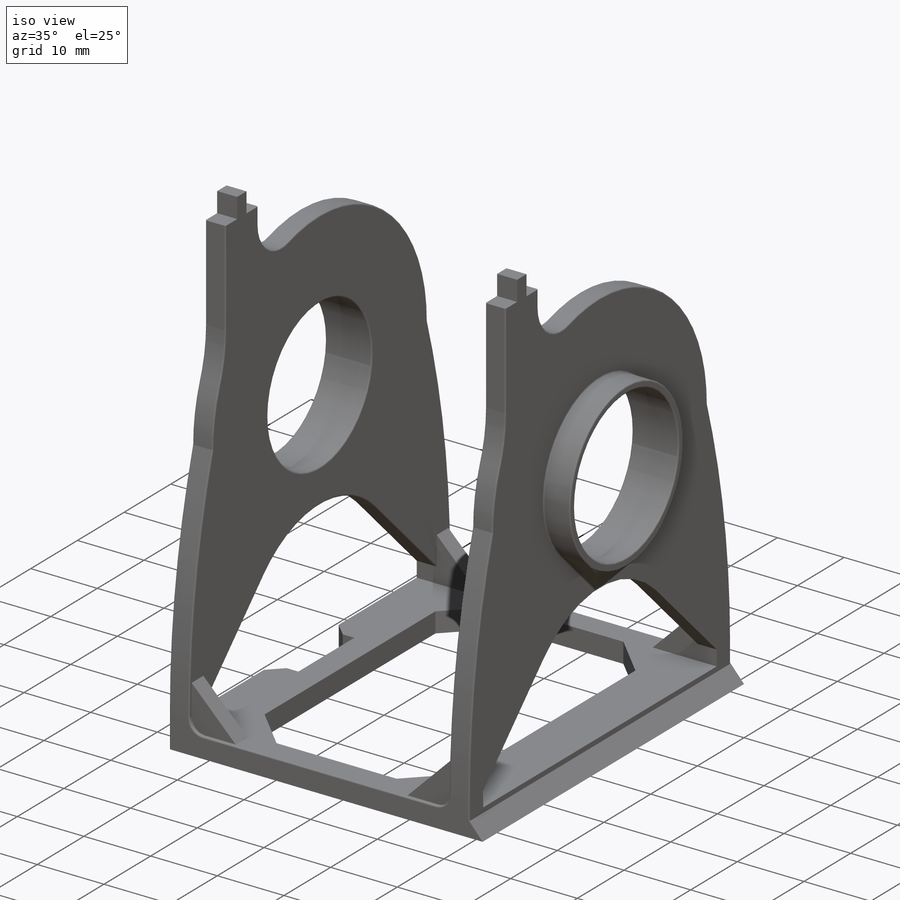
[diagram: iso view]
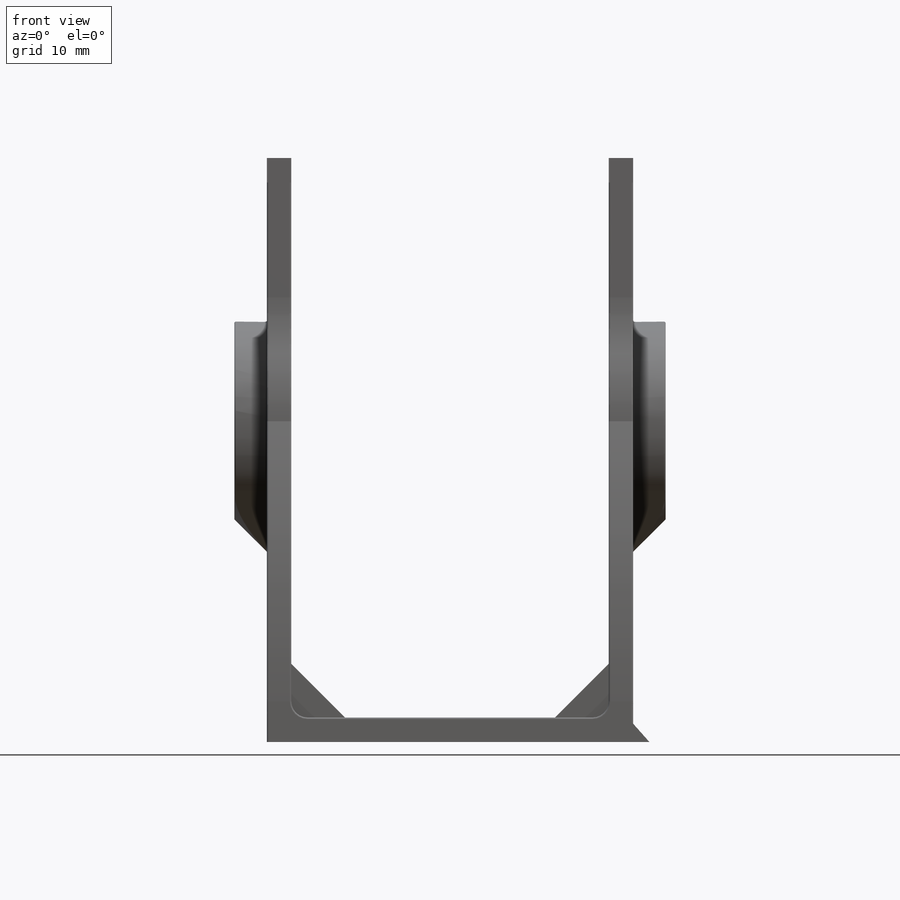
[diagram: front view]
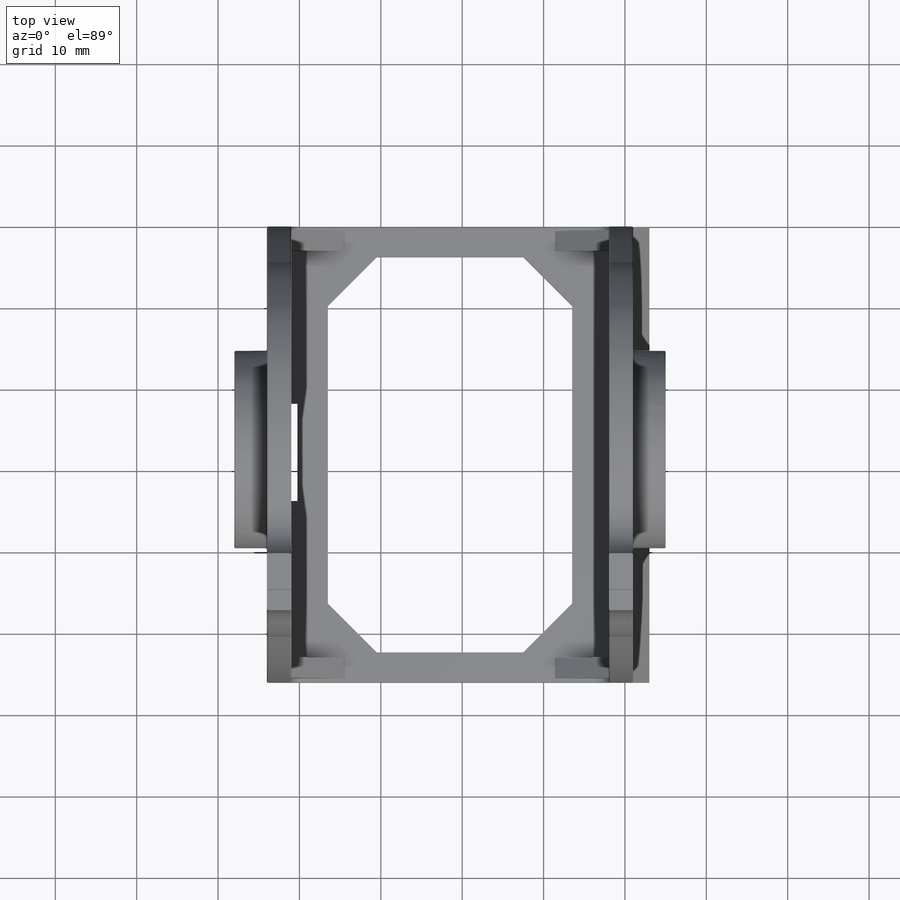
[diagram: top view]
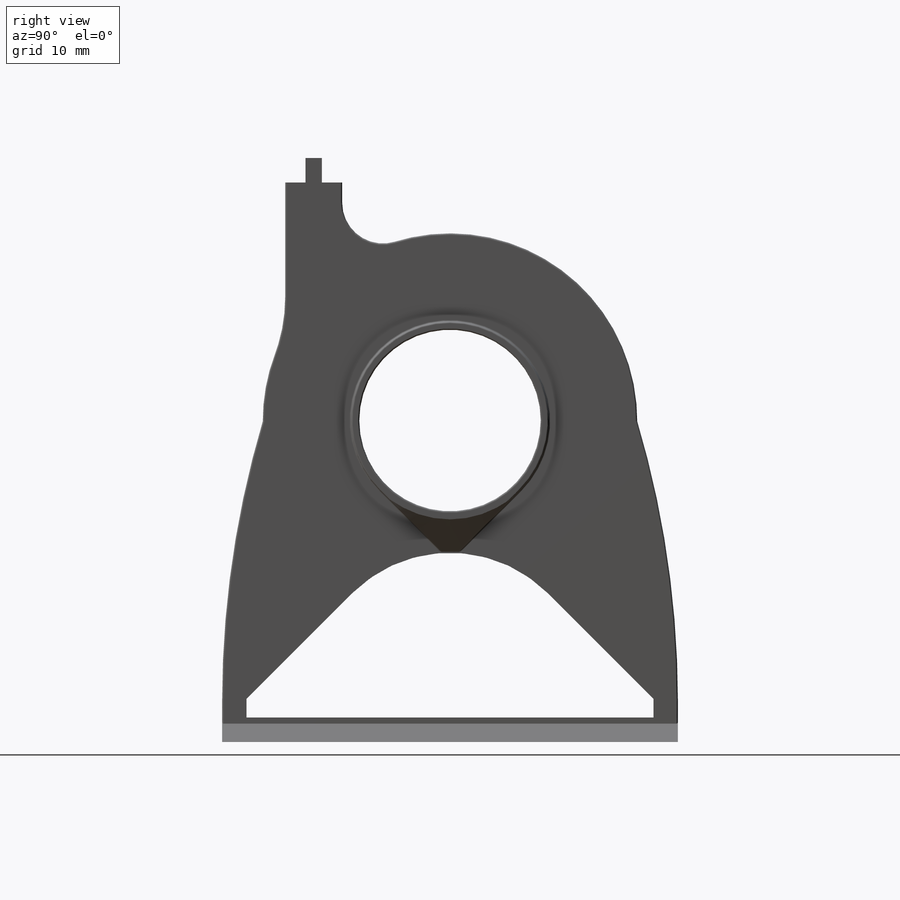
[diagram: right view]
SOLIDWORKS PART (.sldprt)
format: sldprt  version: not decoded by parser v0  size: 1,181,696 bytes
history: native  units: mm
features: sketch x19, cut_extrude x9, extrude x8, revolve x2, fillet x2, material x1, plane x1, chamfer x1 (+11 scaffold rows collapsed)
feature tree (54):
  scaffold x11  (default folders/planes/origin — collapsed)
  material  "Material <not specified>"
  sketch  "Sketch1"  dims[c1.D1=2.0mm c1.D2=3.0mm c2.D1=3.0mm c2.D2=45.0mm c2.D3=3.0mm c3.D2=2.5mm c3.D4=2.5mm]
  extrude  "Boss-Extrude1"  Depth=56mm
  sketch  "Sketch2"  dims[D1=3.0mm]
  cut_extrude  "Cut-Extrude1"  [1 undecoded]
  plane  "Plane1"
  sketch  "Sketch3"  dims[c1.D1=4.0mm c2.D1=45.0deg c3.D1=3.0mm]
  revolve  "Revolve1"  Angle=360deg
  sketch  "Sketch4"  dims[D1=4.0mm]
  revolve  "Revolve2"  Angle=360deg
  sketch  "Sketch5"  dims[c1.D1=2.0mm c1.D2=8.0mm c1.D3=8.0mm c1.D4=~20.315645mm c2.D1=17.0mm c2.D2=1.0mm c2.D3=1.0mm c3.D2=3.0mm c3.D1=45.0mm c4.D1=45.0deg c5.D1=5.0mm c5.D2=2.3mm]
  sketch  "Sketch6"  dims[D1=45.0deg]
  cut_extrude  "Cut-Extrude3"  Depth=10mm
  cut_extrude  "Cut-Extrude6"  [1 undecoded]
  sketch  "Sketch6<5>"  dims[D19=45.0mm]
  sketch  "Sketch13"  dims[D1=3.0mm]
  extrude  "Boss-Extrude6"  [1 undecoded]
  cut_extrude  "Cut-Extrude12"  Depth=19mm
  cut_extrude  "Cut-Extrude13"  [1 undecoded]
  sketch  "Sketch5<7>"  dims[D1=70.0mm]
  sketch  "Sketch16"  dims[D1=2.25mm]
  extrude  "Boss-Extrude8"  [1 undecoded]
  fillet  "Fillet19"  Radius=0.2mm
  sketch  "Sketch17"  dims[c1.D6=~6.151756mm c1.D1=4.5mm c2.D1=2.5mm c2.D2=2.5mm c2.D3=2.5mm c2.D4=2.5mm c2.D5=2.5mm c3.D1=2.5mm c3.D2=2.5mm c4.D1=2.5mm]
  sketch  "Sketch18"  dims[D1=7.0mm]
  extrude  "Boss-Extrude10"  Depth=0.5mm
  extrude  "Boss-Extrude11"  [1 undecoded]
  sketch  "Sketch18<2>"  dims[D19=55.5mm]
  sketch  "Sketch19"  dims[c1.D1=~30.686718mm c1.D3=5.0mm c1.D4=20.0mm c2.D1=3.5mm c2.D2=3.5mm c2.D5=3.0mm c3.D1=1.0mm c3.D2=1.0mm]
  extrude  "Boss-Extrude12"  [1 undecoded]
  extrude  "Boss-Extrude14"  [1 undecoded]
  sketch  "Sketch19<2>"  dims[D19=42.0mm]
  fillet  "Fillet20"  Radius=0.2mm
  cut_extrude  "Cut-Extrude14"  Depth=10mm
  sketch  "Sketch21"  dims[D1=2.0mm]
  extrude  "Boss-Extrude15"  Depth=15mm
  sketch  "Sketch22"
  cut_extrude  "Cut-Extrude15"  Depth=10mm
  cut_extrude  "Cut-Extrude17"  [1 undecoded]
  sketch  "Sketch22<3>"  dims[D1=10.0mm]
  sketch  "Sketch23"  dims[D1=6.0mm D2=6.0mm]
  cut_extrude  "Cut-Extrude18"  Depth=10mm
  chamfer  "Chamfer1"  Distance=2mm Angle=45deg
decode coverage: 31 of 41 modeling features carry decoded parameters
note: ~ marks probable driven/reference dimensions
note: 9 parameter values undecoded
summary: no parameter record found for 9 features
note: suppression state not decoded; provenance and decode notes live in map.json
